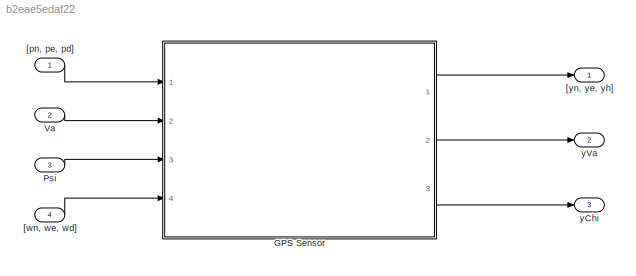
MODEL slx_b2eae5edaf22
KIND model
CONFIG AbsTol = auto
CONFIG EnableMultiTasking = off
CONFIG FixedStep = 0.001
CONFIG MaxStep = auto
CONFIG MinStep = auto
CONFIG RelTol = 1e-3
CONFIG SampleTimeConstraint = Unconstrained
CONFIG Solver = FixedStepAuto
CONFIG SolverName = FixedStepAuto
CONFIG StartTime = 0.0
CONFIG StopTime = 3600*12
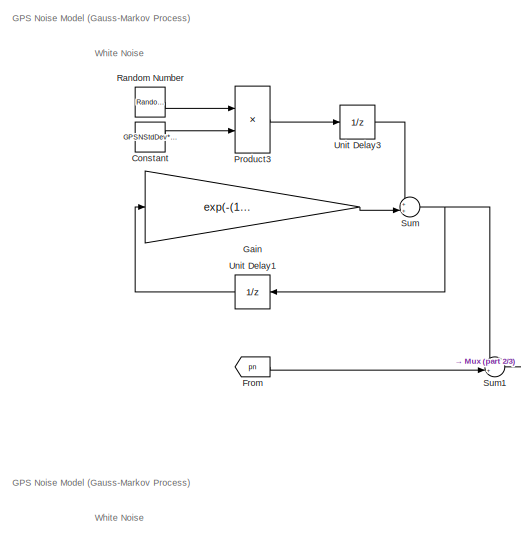
[diagram: GPS Sensor - part 1/3, top center region]
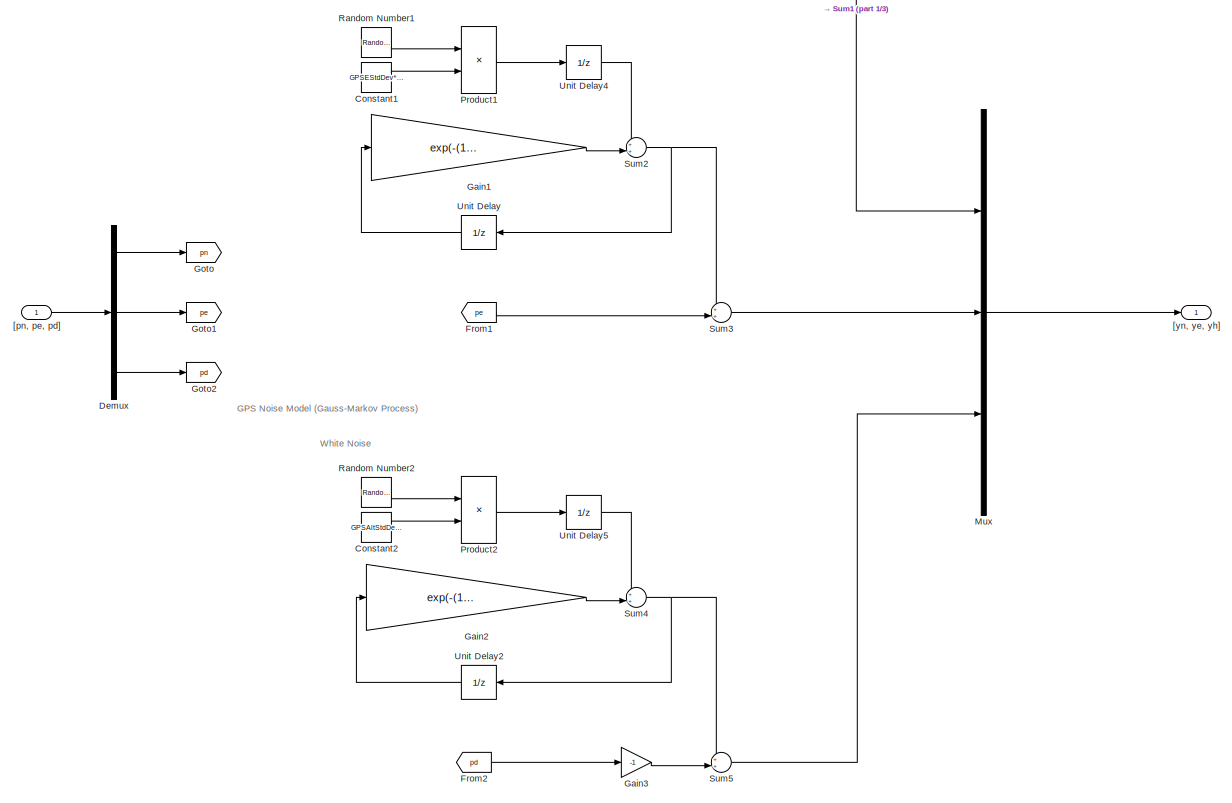
[diagram: GPS Sensor - part 2/3, full width, middle band]
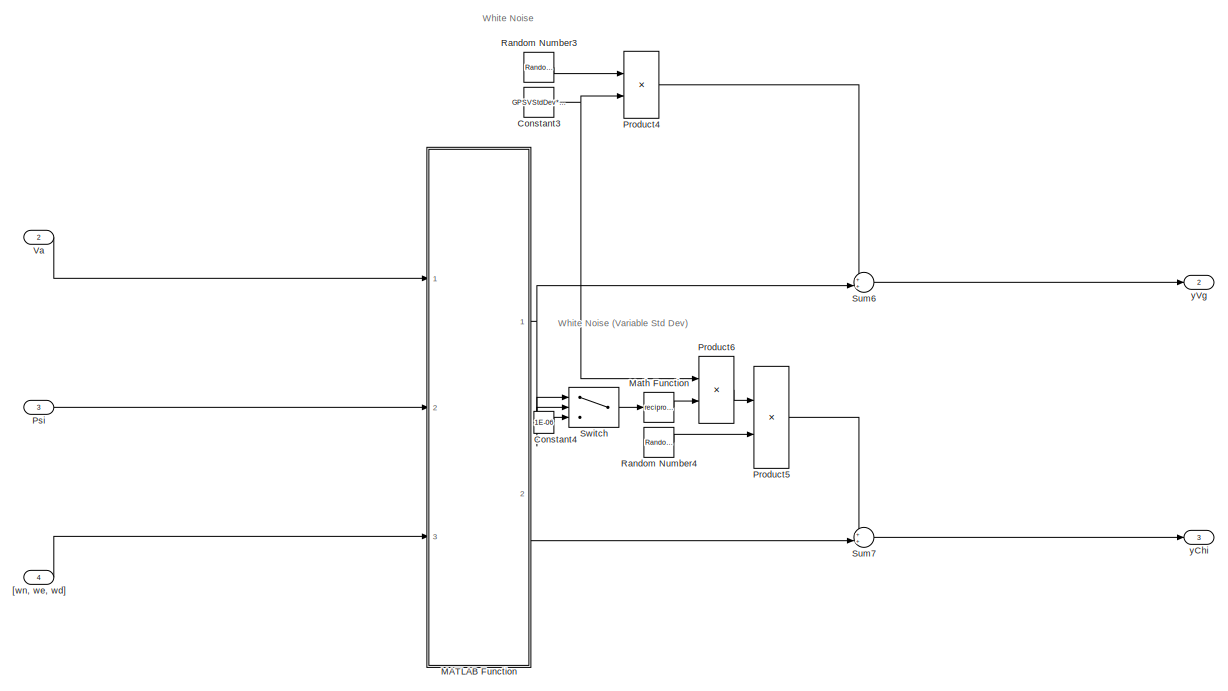
[diagram: GPS Sensor - part 3/3, full width, bottom band]
BLOCK [SubSystem] GPS Sensor
  Ports = [4, 3]
  RequestExecContextInheritance = off
BLOCK [Constant] GPS Sensor/Constant
  Value = GPSNStdDev*sqrt(SampleTime/2)
BLOCK [Constant] GPS Sensor/Constant1
  Value = GPSEStdDev*sqrt(SampleTime/2)
BLOCK [Constant] GPS Sensor/Constant2
  Value = GPSAltStdDev*sqrt(SampleTime/2)
BLOCK [Constant] GPS Sensor/Constant3
  Value = GPSVStdDev*sqrt(SampleTime/2)
BLOCK [Constant] GPS Sensor/Constant4
  Value = 1E-06
BLOCK [Demux] GPS Sensor/Demux
  DisplayOption = bar
  Outputs = 3
  Ports = [1, 3]
BLOCK [From] GPS Sensor/From
  GotoTag = pn
BLOCK [From] GPS Sensor/From1
  GotoTag = pe
BLOCK [From] GPS Sensor/From2
  GotoTag = pd
BLOCK [Gain] GPS Sensor/Gain
  Gain = exp(-(1/OneOverkGPSN)*SampleTime)
  OutDataTypeStr = Inherit: Inherit via internal rule
  ParamDataTypeStr = Inherit: Inherit via internal rule
  SaturateOnIntegerOverflow = off
BLOCK [Gain] GPS Sensor/Gain1
  Gain = exp(-(1/OneOverkGPSE)*SampleTime)
  OutDataTypeStr = Inherit: Inherit via internal rule
  ParamDataTypeStr = Inherit: Inherit via internal rule
  SaturateOnIntegerOverflow = off
BLOCK [Gain] GPS Sensor/Gain2
  Gain = exp(-(1/OneOverkGPSAlt)*SampleTime)
  OutDataTypeStr = Inherit: Inherit via internal rule
  ParamDataTypeStr = Inherit: Inherit via internal rule
  SaturateOnIntegerOverflow = off
BLOCK [Gain] GPS Sensor/Gain3
  Gain = -1
  OutDataTypeStr = Inherit: Inherit via internal rule
  ParamDataTypeStr = Inherit: Inherit via internal rule
  SaturateOnIntegerOverflow = off
BLOCK [Goto] GPS Sensor/Goto
  GotoTag = pn
BLOCK [Goto] GPS Sensor/Goto1
  GotoTag = pe
BLOCK [Goto] GPS Sensor/Goto2
  GotoTag = pd
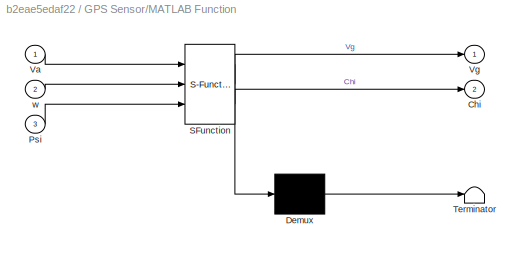
BLOCK [SubSystem] GPS Sensor/MATLAB Function
  ErrorFcn = Stateflow.Translate.translate
  PermitHierarchicalResolution = ExplicitOnly
  Ports = [3, 2]
  RequestExecContextInheritance = off
  SFBlockType = MATLAB Function
  TreatAsAtomicUnit = on
BLOCK [Demux] GPS Sensor/MATLAB Function/ Demux 
  Outputs = 1
  Ports = [1, 1]
BLOCK [S-Function] GPS Sensor/MATLAB Function/ SFunction 
  EnableBusSupport = on
  FunctionName = sf_sfun
  PortCounts = [3 3]
  Ports = [3, 3]
  SFcnIsStateOwnerBlock = off
  SFunctionDeploymentMode = off
  Tag = Stateflow S-Function GPS 2
BLOCK [Terminator] GPS Sensor/MATLAB Function/ Terminator 
BLOCK [Outport] GPS Sensor/MATLAB Function/Chi
  IconDisplay = Port number
  Port = 2
BLOCK [Inport] GPS Sensor/MATLAB Function/Psi
  IconDisplay = Port number
  Port = 3
BLOCK [Inport] GPS Sensor/MATLAB Function/Va
  IconDisplay = Port number
BLOCK [Outport] GPS Sensor/MATLAB Function/Vg
  IconDisplay = Port number
BLOCK [Inport] GPS Sensor/MATLAB Function/w
  IconDisplay = Port number
  Port = 2
BLOCK [Math] GPS Sensor/Math Function
  Operator = reciprocal
  Ports = [1, 1]
BLOCK [Mux] GPS Sensor/Mux
  DisplayOption = bar
  Inputs = 3
  Ports = [3, 1]
BLOCK [Product] GPS Sensor/Product1
  InputSameDT = off
  OutDataTypeStr = Inherit: Inherit via internal rule
  Ports = [2, 1]
  RndMeth = Floor
  SaturateOnIntegerOverflow = off
BLOCK [Product] GPS Sensor/Product2
  InputSameDT = off
  OutDataTypeStr = Inherit: Inherit via internal rule
  Ports = [2, 1]
  RndMeth = Floor
  SaturateOnIntegerOverflow = off
BLOCK [Product] GPS Sensor/Product3
  InputSameDT = off
  OutDataTypeStr = Inherit: Inherit via internal rule
  Ports = [2, 1]
  RndMeth = Floor
  SaturateOnIntegerOverflow = off
BLOCK [Product] GPS Sensor/Product4
  InputSameDT = off
  OutDataTypeStr = Inherit: Inherit via internal rule
  Ports = [2, 1]
  RndMeth = Floor
  SaturateOnIntegerOverflow = off
BLOCK [Product] GPS Sensor/Product5
  InputSameDT = off
  OutDataTypeStr = Inherit: Inherit via internal rule
  Ports = [2, 1]
  RndMeth = Floor
  SaturateOnIntegerOverflow = off
BLOCK [Product] GPS Sensor/Product6
  InputSameDT = off
  OutDataTypeStr = Inherit: Inherit via internal rule
  Ports = [2, 1]
  RndMeth = Floor
  SaturateOnIntegerOverflow = off
BLOCK [Inport] GPS Sensor/Psi
  IconDisplay = Port number
  Port = 3
BLOCK [RandomNumber] GPS Sensor/Random Number
  SampleTime = SampleTime
BLOCK [RandomNumber] GPS Sensor/Random Number1
  SampleTime = SampleTime
BLOCK [RandomNumber] GPS Sensor/Random Number2
  SampleTime = SampleTime
BLOCK [RandomNumber] GPS Sensor/Random Number3
  SampleTime = SampleTime
BLOCK [RandomNumber] GPS Sensor/Random Number4
  SampleTime = SampleTime
BLOCK [Sum] GPS Sensor/Sum
  IconShape = round
  InputSameDT = off
  Inputs = ++|
  OutDataTypeStr = Inherit: Inherit via internal rule
  Ports = [2, 1]
  SaturateOnIntegerOverflow = off
BLOCK [Sum] GPS Sensor/Sum1
  IconShape = round
  InputSameDT = off
  Inputs = ++|
  OutDataTypeStr = Inherit: Inherit via internal rule
  Ports = [2, 1]
  SaturateOnIntegerOverflow = off
BLOCK [Sum] GPS Sensor/Sum2
  IconShape = round
  InputSameDT = off
  Inputs = ++|
  OutDataTypeStr = Inherit: Inherit via internal rule
  Ports = [2, 1]
  SaturateOnIntegerOverflow = off
BLOCK [Sum] GPS Sensor/Sum3
  IconShape = round
  InputSameDT = off
  Inputs = ++|
  OutDataTypeStr = Inherit: Inherit via internal rule
  Ports = [2, 1]
  SaturateOnIntegerOverflow = off
BLOCK [Sum] GPS Sensor/Sum4
  IconShape = round
  InputSameDT = off
  Inputs = ++|
  OutDataTypeStr = Inherit: Inherit via internal rule
  Ports = [2, 1]
  SaturateOnIntegerOverflow = off
BLOCK [Sum] GPS Sensor/Sum5
  IconShape = round
  InputSameDT = off
  Inputs = ++|
  OutDataTypeStr = Inherit: Inherit via internal rule
  Ports = [2, 1]
  SaturateOnIntegerOverflow = off
BLOCK [Sum] GPS Sensor/Sum6
  IconShape = round
  InputSameDT = off
  Inputs = ++|
  OutDataTypeStr = Inherit: Inherit via internal rule
  Ports = [2, 1]
  SaturateOnIntegerOverflow = off
BLOCK [Sum] GPS Sensor/Sum7
  IconShape = round
  InputSameDT = off
  Inputs = ++|
  OutDataTypeStr = Inherit: Inherit via internal rule
  Ports = [2, 1]
  SaturateOnIntegerOverflow = off
BLOCK [Switch] GPS Sensor/Switch
  Criteria = u2 ~= 0
  InputSameDT = off
  SaturateOnIntegerOverflow = off
BLOCK [UnitDelay] GPS Sensor/Unit Delay
  InputProcessing = Elements as channels (sample based)
  SampleTime = SampleTime
BLOCK [UnitDelay] GPS Sensor/Unit Delay1
  InputProcessing = Elements as channels (sample based)
  SampleTime = SampleTime
BLOCK [UnitDelay] GPS Sensor/Unit Delay2
  InputProcessing = Elements as channels (sample based)
  SampleTime = SampleTime
BLOCK [UnitDelay] GPS Sensor/Unit Delay3
  InputProcessing = Elements as channels (sample based)
  SampleTime = SampleTime
BLOCK [UnitDelay] GPS Sensor/Unit Delay4
  InputProcessing = Elements as channels (sample based)
  SampleTime = SampleTime
BLOCK [UnitDelay] GPS Sensor/Unit Delay5
  InputProcessing = Elements as channels (sample based)
  SampleTime = SampleTime
BLOCK [Inport] GPS Sensor/Va
  IconDisplay = Port number
  Port = 2
BLOCK [Inport] GPS Sensor/[pn, pe, pd]
  IconDisplay = Port number
BLOCK [Inport] GPS Sensor/[wn, we, wd]
  IconDisplay = Port number
  Port = 4
BLOCK [Outport] GPS Sensor/[yn, ye, yh]
  IconDisplay = Port number
BLOCK [Outport] GPS Sensor/yChi
  IconDisplay = Port number
  Port = 3
BLOCK [Outport] GPS Sensor/yVg
  IconDisplay = Port number
  Port = 2
BLOCK [Inport] Psi
  IconDisplay = Port number
  Port = 3
BLOCK [Inport] Va
  IconDisplay = Port number
  Port = 2
BLOCK [Inport] [pn, pe, pd]
  IconDisplay = Port number
BLOCK [Inport] [wn, we, wd]
  IconDisplay = Port number
  Port = 4
BLOCK [Outport] [yn, ye, yh]
  IconDisplay = Port number
BLOCK [Outport] yChi
  IconDisplay = Port number
  Port = 3
BLOCK [Outport] yVa
  IconDisplay = Port number
  Port = 2
ANNOTATION GPS Sensor: GPS Noise Model (Gauss-Markov Process)
ANNOTATION GPS Sensor: White Noise
ANNOTATION GPS Sensor: White Noise (Variable Std Dev)
LINE GPS Sensor/Constant1:1 -> GPS Sensor/Product1:2
LINE GPS Sensor/Constant2:1 -> GPS Sensor/Product2:2
NET GPS Sensor/Constant3:1 -> GPS Sensor/Product4:2, GPS Sensor/Product6:1
LINE GPS Sensor/Constant4:1 -> GPS Sensor/Switch:3
LINE GPS Sensor/Constant:1 -> GPS Sensor/Product3:2
LINE GPS Sensor/Demux:1 -> GPS Sensor/Goto:1
LINE GPS Sensor/Demux:2 -> GPS Sensor/Goto1:1
LINE GPS Sensor/Demux:3 -> GPS Sensor/Goto2:1
LINE GPS Sensor/From1:1 -> GPS Sensor/Sum3:2
LINE GPS Sensor/From2:1 -> GPS Sensor/Gain3:1
LINE GPS Sensor/From:1 -> GPS Sensor/Sum1:2
LINE GPS Sensor/Gain1:1 -> GPS Sensor/Sum2:2
LINE GPS Sensor/Gain2:1 -> GPS Sensor/Sum4:2
LINE GPS Sensor/Gain3:1 -> GPS Sensor/Sum5:2
LINE GPS Sensor/Gain:1 -> GPS Sensor/Sum:2
NET GPS Sensor/MATLAB Function:1 -> GPS Sensor/Sum6:2, GPS Sensor/Switch:1, GPS Sensor/Switch:2
LINE GPS Sensor/MATLAB Function:2 -> GPS Sensor/Sum7:2
LINE GPS Sensor/Math Function:1 -> GPS Sensor/Product6:2
LINE GPS Sensor/Mux:1 -> GPS Sensor/[yn, ye, yh]:1
LINE GPS Sensor/Product1:1 -> GPS Sensor/Unit Delay4:1
LINE GPS Sensor/Product2:1 -> GPS Sensor/Unit Delay5:1
LINE GPS Sensor/Product3:1 -> GPS Sensor/Unit Delay3:1
LINE GPS Sensor/Product4:1 -> GPS Sensor/Sum6:1
LINE GPS Sensor/Product5:1 -> GPS Sensor/Sum7:1
LINE GPS Sensor/Product6:1 -> GPS Sensor/Product5:1
LINE GPS Sensor/Psi:1 -> GPS Sensor/MATLAB Function:2
LINE GPS Sensor/Random Number1:1 -> GPS Sensor/Product1:1
LINE GPS Sensor/Random Number2:1 -> GPS Sensor/Product2:1
LINE GPS Sensor/Random Number3:1 -> GPS Sensor/Product4:1
LINE GPS Sensor/Random Number4:1 -> GPS Sensor/Product5:2
LINE GPS Sensor/Random Number:1 -> GPS Sensor/Product3:1
LINE GPS Sensor/Sum1:1 -> GPS Sensor/Mux:1
NET GPS Sensor/Sum2:1 -> GPS Sensor/Sum3:1, GPS Sensor/Unit Delay:1
LINE GPS Sensor/Sum3:1 -> GPS Sensor/Mux:2
NET GPS Sensor/Sum4:1 -> GPS Sensor/Sum5:1, GPS Sensor/Unit Delay2:1
LINE GPS Sensor/Sum5:1 -> GPS Sensor/Mux:3
LINE GPS Sensor/Sum6:1 -> GPS Sensor/yVg:1
LINE GPS Sensor/Sum7:1 -> GPS Sensor/yChi:1
NET GPS Sensor/Sum:1 -> GPS Sensor/Sum1:1, GPS Sensor/Unit Delay1:1
LINE GPS Sensor/Switch:1 -> GPS Sensor/Math Function:1
LINE GPS Sensor/Unit Delay1:1 -> GPS Sensor/Gain:1
LINE GPS Sensor/Unit Delay2:1 -> GPS Sensor/Gain2:1
LINE GPS Sensor/Unit Delay3:1 -> GPS Sensor/Sum:1
LINE GPS Sensor/Unit Delay4:1 -> GPS Sensor/Sum2:1
LINE GPS Sensor/Unit Delay5:1 -> GPS Sensor/Sum4:1
LINE GPS Sensor/Unit Delay:1 -> GPS Sensor/Gain1:1
LINE GPS Sensor/Va:1 -> GPS Sensor/MATLAB Function:1
LINE GPS Sensor/[pn, pe, pd]:1 -> GPS Sensor/Demux:1
LINE GPS Sensor/[wn, we, wd]:1 -> GPS Sensor/MATLAB Function:3
LINE GPS Sensor:1 -> [yn, ye, yh]:1
LINE GPS Sensor:2 -> yVa:1
LINE GPS Sensor:3 -> yChi:1
LINE Psi:1 -> GPS Sensor:3
LINE Va:1 -> GPS Sensor:2
LINE [pn, pe, pd]:1 -> GPS Sensor:1
LINE [wn, we, wd]:1 -> GPS Sensor:4
note: NET lines group one-source signal fan-out (src -> all destinations, sorted); 1:1 wires keep LINE
CHART GPS Sensor/MATLAB Function states=1 transitions=1
  STATE_LABEL 'eML_blk_kernel()'
  STATE_LABEL 'SCRIPT:\nfunction [Vg, Chi] = fcn(Va, w, Psi)\n\n    wn = w(1);\n    we = w(2);\n\n    Vg = sqrt( (Va*cos(Psi) + wn)^2 + (Va*sin(Psi) + we)^2 );\n    Chi = atan2( (Va*sin(Psi) + we) , (Va*cos(Psi) + wn) );\n'
